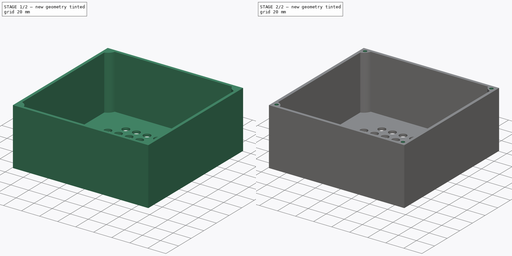
[diagram: build sequence overview — one tinted view per stage of 2, left to right]
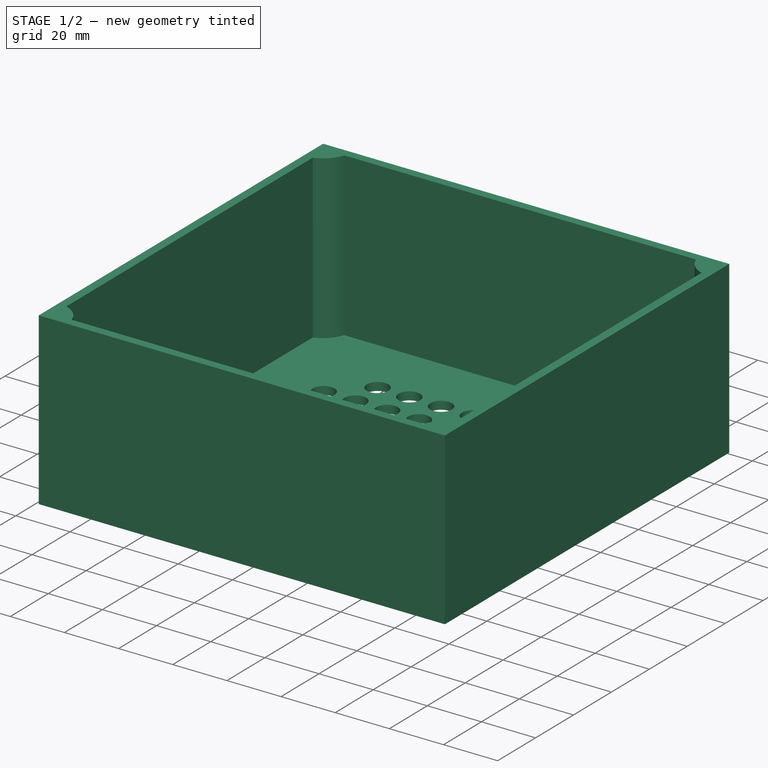
[diagram: stage 1 of 2 — iso view after this stage's code; geometry added in this stage tinted green]
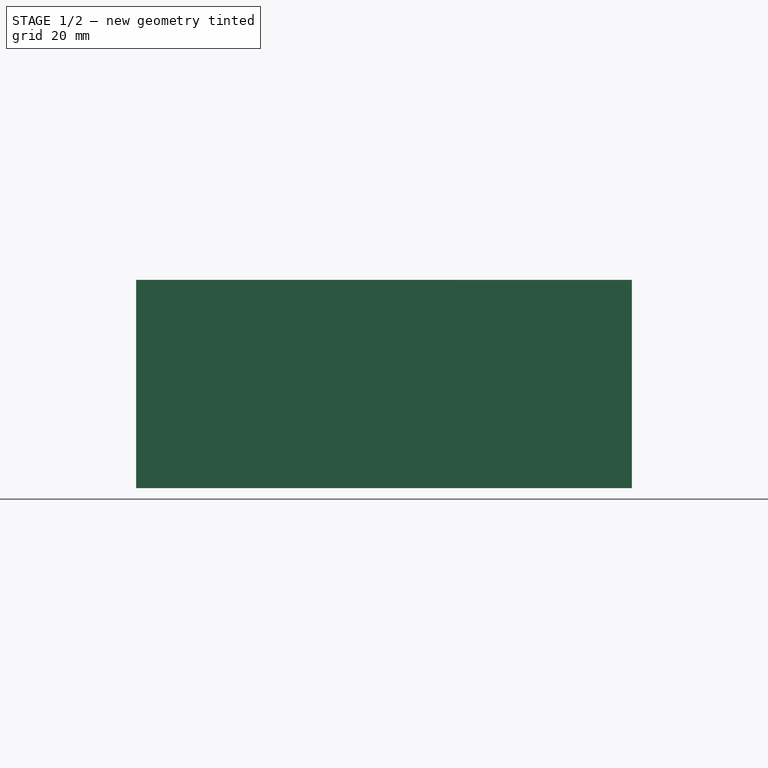
[diagram: stage 1 of 2 — front view after this stage's code; geometry added in this stage tinted green]
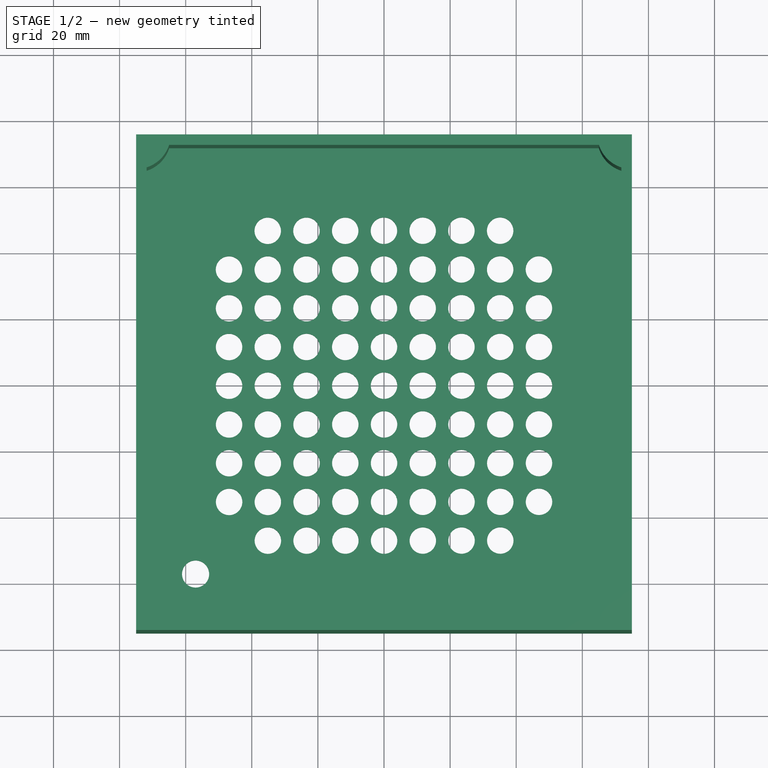
[diagram: stage 1 of 2 — top view after this stage's code; geometry added in this stage tinted green]
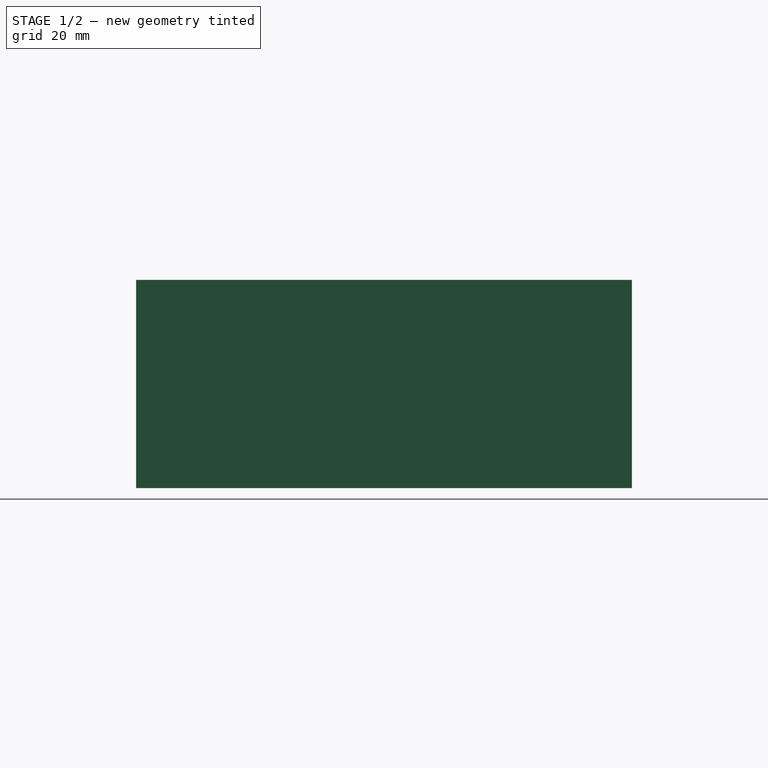
[diagram: stage 1 of 2 — right view after this stage's code; geometry added in this stage tinted green]
FCSTD DOCUMENT  (FreeCAD 0.21R29393 (Git))
Label: SpeakerBack
License: All rights reserved
LicenseURL: http://en.wikipedia.org/wiki/All_rights_reserved
objects: Sketcher::SketchObject×3, PartDesign::Pad×2, PartDesign::Plane×2, PartDesign::Pocket×1, PartDesign::Body×1
note: 12 computed .brp shape members not serialized (recipe doc carries the construction recipe); baked Part::Feature solids carry a one-line shape summary decoded from their .brp

FEATURE [Sketcher::SketchObject] Sketch
  FullyConstrained = false
  MapMode = 5
  Support = -> [XY_Plane]
  sketch-geometry (162):
    g0: LineSegment StartX=-75 StartY=75 StartZ=0 EndX=75 EndY=75 EndZ=0
    g1: LineSegment StartX=75 StartY=75 StartZ=0 EndX=75 EndY=-75 EndZ=0
    g2: LineSegment StartX=75 StartY=-75 StartZ=0 EndX=-75 EndY=-75 EndZ=0
    g3: LineSegment StartX=-75 StartY=-75 StartZ=0 EndX=-75 EndY=75 EndZ=0
    g4: Circle CenterX=-35.1766 CenterY=46.8606 CenterZ=0 NormalX=0 NormalY=0 NormalZ=1 AngleXU=0 Radius=4
    g5: LineSegment StartX=-46.8958 StartY=46.8553 StartZ=0 EndX=-35.1766 EndY=46.8606 EndZ=0
    g6: Circle CenterX=-23.4575 CenterY=46.866 CenterZ=0 NormalX=0 NormalY=0 NormalZ=1 AngleXU=0 Radius=4
    g7: LineSegment StartX=-35.1766 StartY=46.8606 StartZ=0 EndX=-23.4575 EndY=46.866 EndZ=0
    g8: Circle CenterX=-11.7383 CenterY=46.8714 CenterZ=0 NormalX=0 NormalY=0 NormalZ=1 AngleXU=0 Radius=4
    g9: LineSegment StartX=-23.4575 StartY=46.866 StartZ=0 EndX=-11.7383 EndY=46.8714 EndZ=0
    g10: Circle CenterX=-0.0191094 CenterY=46.8767 CenterZ=0 NormalX=0 NormalY=0 NormalZ=1 AngleXU=0 Radius=4
    g11: LineSegment StartX=-11.7383 StartY=46.8714 StartZ=0 EndX=-0.0191094 EndY=46.8767 EndZ=0
    g12: Circle CenterX=11.7001 CenterY=46.8821 CenterZ=0 NormalX=0 NormalY=0 NormalZ=1 AngleXU=0 Radius=4
    g13: LineSegment StartX=-0.0191094 StartY=46.8767 StartZ=0 EndX=11.7001 EndY=46.8821 EndZ=0
    g14: Circle CenterX=23.4192 CenterY=46.8874 CenterZ=0 NormalX=0 NormalY=0 NormalZ=1 AngleXU=0 Radius=4
    g15: LineSegment StartX=11.7001 StartY=46.8821 StartZ=0 EndX=23.4192 EndY=46.8874 EndZ=0
    g16: Circle CenterX=35.1384 CenterY=46.8928 CenterZ=0 NormalX=0 NormalY=0 NormalZ=1 AngleXU=0 Radius=4
    g17: LineSegment StartX=23.4192 StartY=46.8874 StartZ=0 EndX=35.1384 EndY=46.8928 EndZ=0
    g18: LineSegment StartX=35.1384 StartY=46.8928 StartZ=0 EndX=46.8576 EndY=46.8981 EndZ=0
    g19: Circle CenterX=-46.8928 CenterY=35.1361 CenterZ=0 NormalX=0 NormalY=0 NormalZ=1 AngleXU=0 Radius=4
    g20: LineSegment StartX=-46.8981 StartY=46.8553 StartZ=0 EndX=-46.8928 EndY=35.1361 EndZ=0
    g21: Circle CenterX=-35.1736 CenterY=35.1415 CenterZ=0 NormalX=0 NormalY=0 NormalZ=1 AngleXU=0 Radius=4
    g22: LineSegment StartX=-46.8928 StartY=35.1361 StartZ=0 EndX=-35.1736 EndY=35.1415 EndZ=0
    g23: Circle CenterX=-23.4544 CenterY=35.1468 CenterZ=0 NormalX=0 NormalY=0 NormalZ=1 AngleXU=0 Radius=4
    g24: LineSegment StartX=-35.1736 StartY=35.1415 StartZ=0 EndX=-23.4544 EndY=35.1468 EndZ=0
    g25: Circle CenterX=-11.7352 CenterY=35.1522 CenterZ=0 NormalX=0 NormalY=0 NormalZ=1 AngleXU=0 Radius=4
    g26: LineSegment StartX=-23.4544 StartY=35.1468 StartZ=0 EndX=-11.7352 EndY=35.1522 EndZ=0
    g27: Circle CenterX=-0.016068 CenterY=35.1575 CenterZ=0 NormalX=0 NormalY=0 NormalZ=1 AngleXU=0 Radius=4
    g28: LineSegment StartX=-11.7352 StartY=35.1522 StartZ=0 EndX=-0.016068 EndY=35.1575 EndZ=0
    g29: Circle CenterX=11.7031 CenterY=35.1629 CenterZ=0 NormalX=0 NormalY=0 NormalZ=1 AngleXU=0 Radius=4
    g30: LineSegment StartX=-0.016068 StartY=35.1575 StartZ=0 EndX=11.7031 EndY=35.1629 EndZ=0
    g31: Circle CenterX=23.4223 CenterY=35.1682 CenterZ=0 NormalX=0 NormalY=0 NormalZ=1 AngleXU=0 Radius=4
    g32: LineSegment StartX=11.7031 StartY=35.1629 StartZ=0 EndX=23.4223 EndY=35.1682 EndZ=0
    g33: Circle CenterX=35.1415 CenterY=35.1736 CenterZ=0 NormalX=0 NormalY=0 NormalZ=1 AngleXU=0 Radius=4
    g34: LineSegment StartX=23.4223 StartY=35.1682 StartZ=0 EndX=35.1415 EndY=35.1736 EndZ=0
    g35: Circle CenterX=46.8606 CenterY=35.179 CenterZ=0 NormalX=0 NormalY=0 NormalZ=1 AngleXU=0 Radius=4
    g36: LineSegment StartX=35.1415 StartY=35.1736 StartZ=0 EndX=46.8606 EndY=35.179 EndZ=0
    g37: Circle CenterX=-46.8874 CenterY=23.4169 CenterZ=0 NormalX=0 NormalY=0 NormalZ=1 AngleXU=0 Radius=4
    g38: LineSegment StartX=-46.8928 StartY=35.1361 StartZ=0 EndX=-46.8874 EndY=23.4169 EndZ=0
    g39: Circle CenterX=-35.1682 CenterY=23.4223 CenterZ=0 NormalX=0 NormalY=0 NormalZ=1 AngleXU=0 Radius=4
    g40: LineSegment StartX=-46.8874 StartY=23.4169 StartZ=0 EndX=-35.1682 EndY=23.4223 EndZ=0
    g41: Circle CenterX=-23.4491 CenterY=23.4276 CenterZ=0 NormalX=0 NormalY=0 NormalZ=1 AngleXU=0 Radius=4
    g42: LineSegment StartX=-35.1682 StartY=23.4223 StartZ=0 EndX=-23.4491 EndY=23.4276 EndZ=0
    g43: Circle CenterX=-11.7299 CenterY=23.433 CenterZ=0 NormalX=0 NormalY=0 NormalZ=1 AngleXU=0 Radius=4
    g44: LineSegment StartX=-23.4491 StartY=23.4276 StartZ=0 EndX=-11.7299 EndY=23.433 EndZ=0
    g45: Circle CenterX=-0.010712 CenterY=23.4384 CenterZ=0 NormalX=0 NormalY=0 NormalZ=1 AngleXU=0 Radius=4
    g46: LineSegment StartX=-11.7299 StartY=23.433 StartZ=0 EndX=-0.010712 EndY=23.4384 EndZ=0
    g47: Circle CenterX=11.7085 CenterY=23.4437 CenterZ=0 NormalX=0 NormalY=0 NormalZ=1 AngleXU=0 Radius=4
    g48: LineSegment StartX=-0.010712 StartY=23.4384 StartZ=0 EndX=11.7085 EndY=23.4437 EndZ=0
    g49: Circle CenterX=23.4276 CenterY=23.4491 CenterZ=0 NormalX=0 NormalY=0 NormalZ=1 AngleXU=0 Radius=4
    g50: LineSegment StartX=11.7085 StartY=23.4437 StartZ=0 EndX=23.4276 EndY=23.4491 EndZ=0
    g51: Circle CenterX=35.1468 CenterY=23.4544 CenterZ=0 NormalX=0 NormalY=0 NormalZ=1 AngleXU=0 Radius=4
    g52: LineSegment StartX=23.4276 StartY=23.4491 StartZ=0 EndX=35.1468 EndY=23.4544 EndZ=0
    g53: Circle CenterX=46.866 CenterY=23.4598 CenterZ=0 NormalX=0 NormalY=0 NormalZ=1 AngleXU=0 Radius=4
    g54: LineSegment StartX=35.1468 StartY=23.4544 StartZ=0 EndX=46.866 EndY=23.4598 EndZ=0
    g55: Circle CenterX=-46.8821 CenterY=11.6978 CenterZ=0 NormalX=0 NormalY=0 NormalZ=1 AngleXU=0 Radius=4
    g56: LineSegment StartX=-46.8874 StartY=23.4169 StartZ=0 EndX=-46.8821 EndY=11.6978 EndZ=0
    g57: Circle CenterX=-35.1629 CenterY=11.7031 CenterZ=0 NormalX=0 NormalY=0 NormalZ=1 AngleXU=0 Radius=4
    g58: LineSegment StartX=-46.8821 StartY=11.6978 StartZ=0 EndX=-35.1629 EndY=11.7031 EndZ=0
    g59: Circle CenterX=-23.4437 CenterY=11.7085 CenterZ=0 NormalX=0 NormalY=0 NormalZ=1 AngleXU=0 Radius=4
    g60: LineSegment StartX=-35.1629 StartY=11.7031 StartZ=0 EndX=-23.4437 EndY=11.7085 EndZ=0
    g61: Circle CenterX=-11.7245 CenterY=11.7138 CenterZ=0 NormalX=0 NormalY=0 NormalZ=1 AngleXU=0 Radius=4
    g62: LineSegment StartX=-23.4437 StartY=11.7085 StartZ=0 EndX=-11.7245 EndY=11.7138 EndZ=0
    g63: Circle CenterX=-0.005356 CenterY=11.7192 CenterZ=0 NormalX=0 NormalY=0 NormalZ=1 AngleXU=0 Radius=4
    g64: LineSegment StartX=-11.7245 StartY=11.7138 StartZ=0 EndX=-0.005356 EndY=11.7192 EndZ=0
    g65: Circle CenterX=11.7138 CenterY=11.7245 CenterZ=0 NormalX=0 NormalY=0 NormalZ=1 AngleXU=0 Radius=4
    g66: LineSegment StartX=-0.005356 StartY=11.7192 StartZ=0 EndX=11.7138 EndY=11.7245 EndZ=0
    g67: Circle CenterX=23.433 CenterY=11.7299 CenterZ=0 NormalX=0 NormalY=0 NormalZ=1 AngleXU=0 Radius=4
    g68: LineSegment StartX=11.7138 StartY=11.7245 StartZ=0 EndX=23.433 EndY=11.7299 EndZ=0
    g69: Circle CenterX=35.1522 CenterY=11.7352 CenterZ=0 NormalX=0 NormalY=0 NormalZ=1 AngleXU=0 Radius=4
    g70: LineSegment StartX=23.433 StartY=11.7299 StartZ=0 EndX=35.1522 EndY=11.7352 EndZ=0
    g71: Circle CenterX=46.8714 CenterY=11.7406 CenterZ=0 NormalX=0 NormalY=0 NormalZ=1 AngleXU=0 Radius=4
    g72: LineSegment StartX=35.1522 StartY=11.7352 StartZ=0 EndX=46.8714 EndY=11.7406 EndZ=0
    g73: Circle CenterX=-46.8767 CenterY=-0.021424 CenterZ=0 NormalX=0 NormalY=0 NormalZ=1 AngleXU=0 Radius=4
    g74: LineSegment StartX=-46.8821 StartY=11.6978 StartZ=0 EndX=-46.8767 EndY=-0.021424 EndZ=0
    g75: Circle CenterX=-35.1575 CenterY=-0.016068 CenterZ=0 NormalX=0 NormalY=0 NormalZ=1 AngleXU=0 Radius=4
    g76: LineSegment StartX=-46.8767 StartY=-0.021424 StartZ=0 EndX=-35.1575 EndY=-0.016068 EndZ=0
    g77: Circle CenterX=-23.4384 CenterY=-0.010712 CenterZ=0 NormalX=0 NormalY=0 NormalZ=1 AngleXU=0 Radius=4
    g78: LineSegment StartX=-35.1575 StartY=-0.016068 StartZ=0 EndX=-23.4384 EndY=-0.010712 EndZ=0
    g79: Circle CenterX=-11.7192 CenterY=-0.005356 CenterZ=0 NormalX=0 NormalY=0 NormalZ=1 AngleXU=0 Radius=4
    g80: LineSegment StartX=-23.4384 StartY=-0.010712 StartZ=0 EndX=-11.7192 EndY=-0.005356 EndZ=0
    g81: Circle CenterX=0 CenterY=0 CenterZ=0 NormalX=0 NormalY=0 NormalZ=1 AngleXU=0 Radius=4
    g82: LineSegment StartX=-11.7192 StartY=-0.005356 StartZ=0 EndX=0 EndY=0 EndZ=0
    g83: Circle CenterX=11.7192 CenterY=0.005356 CenterZ=0 NormalX=0 NormalY=0 NormalZ=1 AngleXU=0 Radius=4
    g84: LineSegment StartX=0 StartY=0 StartZ=0 EndX=11.7192 EndY=0.005356 EndZ=0
    g85: Circle CenterX=23.4384 CenterY=0.010712 CenterZ=0 NormalX=0 NormalY=0 NormalZ=1 AngleXU=0 Radius=4
    g86: LineSegment StartX=11.7192 StartY=0.005356 StartZ=0 EndX=23.4384 EndY=0.010712 EndZ=0
    g87: Circle CenterX=35.1575 CenterY=0.016068 CenterZ=0 NormalX=0 NormalY=0 NormalZ=1 AngleXU=0 Radius=4
    g88: LineSegment StartX=23.4384 StartY=0.010712 StartZ=0 EndX=35.1575 EndY=0.016068 EndZ=0
    g89: Circle CenterX=46.8767 CenterY=0.021424 CenterZ=0 NormalX=0 NormalY=0 NormalZ=1 AngleXU=0 Radius=4
    g90: LineSegment StartX=35.1575 StartY=0.016068 StartZ=0 EndX=46.8767 EndY=0.021424 EndZ=0
    g91: Circle CenterX=-46.8714 CenterY=-11.7406 CenterZ=0 NormalX=0 NormalY=0 NormalZ=1 AngleXU=0 Radius=4
    g92: LineSegment StartX=-46.8767 StartY=-0.021424 StartZ=0 EndX=-46.8714 EndY=-11.7406 EndZ=0
    g93: Circle CenterX=-35.1522 CenterY=-11.7352 CenterZ=0 NormalX=0 NormalY=0 NormalZ=1 AngleXU=0 Radius=4
    g94: LineSegment StartX=-46.8714 StartY=-11.7406 StartZ=0 EndX=-35.1522 EndY=-11.7352 EndZ=0
    g95: Circle CenterX=-23.433 CenterY=-11.7299 CenterZ=0 NormalX=0 NormalY=0 NormalZ=1 AngleXU=0 Radius=4
    g96: LineSegment StartX=-35.1522 StartY=-11.7352 StartZ=0 EndX=-23.433 EndY=-11.7299 EndZ=0
    g97: Circle CenterX=-11.7138 CenterY=-11.7245 CenterZ=0 NormalX=0 NormalY=0 NormalZ=1 AngleXU=0 Radius=4
    g98: LineSegment StartX=-23.433 StartY=-11.7299 StartZ=0 EndX=-11.7138 EndY=-11.7245 EndZ=0
    g99: Circle CenterX=0.005356 CenterY=-11.7192 CenterZ=0 NormalX=0 NormalY=0 NormalZ=1 AngleXU=0 Radius=4
    g100: LineSegment StartX=-11.7138 StartY=-11.7245 StartZ=0 EndX=0.005356 EndY=-11.7192 EndZ=0
    g101: Circle CenterX=11.7245 CenterY=-11.7138 CenterZ=0 NormalX=0 NormalY=0 NormalZ=1 AngleXU=0 Radius=4
    g102: LineSegment StartX=0.005356 StartY=-11.7192 StartZ=0 EndX=11.7245 EndY=-11.7138 EndZ=0
    g103: Circle CenterX=23.4437 CenterY=-11.7085 CenterZ=0 NormalX=0 NormalY=0 NormalZ=1 AngleXU=0 Radius=4
    g104: LineSegment StartX=11.7245 StartY=-11.7138 StartZ=0 EndX=23.4437 EndY=-11.7085 EndZ=0
    g105: Circle CenterX=35.1629 CenterY=-11.7031 CenterZ=0 NormalX=0 NormalY=0 NormalZ=1 AngleXU=0 Radius=4
    g106: LineSegment StartX=23.4437 StartY=-11.7085 StartZ=0 EndX=35.1629 EndY=-11.7031 EndZ=0
    g107: Circle CenterX=46.8821 CenterY=-11.6978 CenterZ=0 NormalX=0 NormalY=0 NormalZ=1 AngleXU=0 Radius=4
    g108: LineSegment StartX=35.1629 StartY=-11.7031 StartZ=0 EndX=46.8821 EndY=-11.6978 EndZ=0
    g109: Circle CenterX=-46.866 CenterY=-23.4598 CenterZ=0 NormalX=0 NormalY=0 NormalZ=1 AngleXU=0 Radius=4
    g110: LineSegment StartX=-46.8714 StartY=-11.7406 StartZ=0 EndX=-46.866 EndY=-23.4598 EndZ=0
    g111: Circle CenterX=-35.1468 CenterY=-23.4544 CenterZ=0 NormalX=0 NormalY=0 NormalZ=1 AngleXU=0 Radius=4
    g112: LineSegment StartX=-46.866 StartY=-23.4598 StartZ=0 EndX=-35.1468 EndY=-23.4544 EndZ=0
    g113: Circle CenterX=-23.4276 CenterY=-23.4491 CenterZ=0 NormalX=0 NormalY=0 NormalZ=1 AngleXU=0 Radius=4
    g114: LineSegment StartX=-35.1468 StartY=-23.4544 StartZ=0 EndX=-23.4276 EndY=-23.4491 EndZ=0
    g115: Circle CenterX=-11.7085 CenterY=-23.4437 CenterZ=0 NormalX=0 NormalY=0 NormalZ=1 AngleXU=0 Radius=4
    g116: LineSegment StartX=-23.4276 StartY=-23.4491 StartZ=0 EndX=-11.7085 EndY=-23.4437 EndZ=0
    g117: Circle CenterX=0.010712 CenterY=-23.4384 CenterZ=0 NormalX=0 NormalY=0 NormalZ=1 AngleXU=0 Radius=4
    g118: LineSegment StartX=-11.7085 StartY=-23.4437 StartZ=0 EndX=0.010712 EndY=-23.4384 EndZ=0
    g119: Circle CenterX=11.7299 CenterY=-23.433 CenterZ=0 NormalX=0 NormalY=0 NormalZ=1 AngleXU=0 Radius=4
    g120: LineSegment StartX=0.010712 StartY=-23.4384 StartZ=0 EndX=11.7299 EndY=-23.433 EndZ=0
    g121: Circle CenterX=23.4491 CenterY=-23.4276 CenterZ=0 NormalX=0 NormalY=0 NormalZ=1 AngleXU=0 Radius=4
    g122: LineSegment StartX=11.7299 StartY=-23.433 StartZ=0 EndX=23.4491 EndY=-23.4276 EndZ=0
    g123: Circle CenterX=35.1682 CenterY=-23.4223 CenterZ=0 NormalX=0 NormalY=0 NormalZ=1 AngleXU=0 Radius=4
    g124: LineSegment StartX=23.4491 StartY=-23.4276 StartZ=0 EndX=35.1682 EndY=-23.4223 EndZ=0
    g125: Circle CenterX=46.8874 CenterY=-23.4169 CenterZ=0 NormalX=0 NormalY=0 NormalZ=1 AngleXU=0 Radius=4
    g126: LineSegment StartX=35.1682 StartY=-23.4223 StartZ=0 EndX=46.8874 EndY=-23.4169 EndZ=0
    g127: Circle CenterX=-46.8606 CenterY=-35.179 CenterZ=0 NormalX=0 NormalY=0 NormalZ=1 AngleXU=0 Radius=4
    g128: LineSegment StartX=-46.866 StartY=-23.4598 StartZ=0 EndX=-46.8606 EndY=-35.179 EndZ=0
    g129: Circle CenterX=-35.1415 CenterY=-35.1736 CenterZ=0 NormalX=0 NormalY=0 NormalZ=1 AngleXU=0 Radius=4
    g130: LineSegment StartX=-46.8606 StartY=-35.179 StartZ=0 EndX=-35.1415 EndY=-35.1736 EndZ=0
    g131: Circle CenterX=-23.4223 CenterY=-35.1682 CenterZ=0 NormalX=0 NormalY=0 NormalZ=1 AngleXU=0 Radius=4
    g132: LineSegment StartX=-35.1415 StartY=-35.1736 StartZ=0 EndX=-23.4223 EndY=-35.1682 EndZ=0
    g133: Circle CenterX=-11.7031 CenterY=-35.1629 CenterZ=0 NormalX=0 NormalY=0 NormalZ=1 AngleXU=0 Radius=4
    g134: LineSegment StartX=-23.4223 StartY=-35.1682 StartZ=0 EndX=-11.7031 EndY=-35.1629 EndZ=0
    g135: Circle CenterX=0.016068 CenterY=-35.1575 CenterZ=0 NormalX=0 NormalY=0 NormalZ=1 AngleXU=0 Radius=4
    g136: LineSegment StartX=-11.7031 StartY=-35.1629 StartZ=0 EndX=0.016068 EndY=-35.1575 EndZ=0
    g137: Circle CenterX=11.7352 CenterY=-35.1522 CenterZ=0 NormalX=0 NormalY=0 NormalZ=1 AngleXU=0 Radius=4
    g138: LineSegment StartX=0.016068 StartY=-35.1575 StartZ=0 EndX=11.7352 EndY=-35.1522 EndZ=0
    g139: Circle CenterX=23.4544 CenterY=-35.1468 CenterZ=0 NormalX=0 NormalY=0 NormalZ=1 AngleXU=0 Radius=4
    g140: LineSegment StartX=11.7352 StartY=-35.1522 StartZ=0 EndX=23.4544 EndY=-35.1468 EndZ=0
    g141: Circle CenterX=35.1736 CenterY=-35.1415 CenterZ=0 NormalX=0 NormalY=0 NormalZ=1 AngleXU=0 Radius=4
    g142: LineSegment StartX=23.4544 StartY=-35.1468 StartZ=0 EndX=35.1736 EndY=-35.1415 EndZ=0
    g143: Circle CenterX=46.8928 CenterY=-35.1361 CenterZ=0 NormalX=0 NormalY=0 NormalZ=1 AngleXU=0 Radius=4
    g144: LineSegment StartX=35.1736 StartY=-35.1415 StartZ=0 EndX=46.8928 EndY=-35.1361 EndZ=0
    g145: LineSegment StartX=-46.8606 StartY=-35.179 StartZ=0 EndX=-46.8553 EndY=-46.8981 EndZ=0
    g146: Circle CenterX=-35.136 CenterY=-46.8928 CenterZ=0 NormalX=0 NormalY=0 NormalZ=1 AngleXU=0 Radius=4
    g147: LineSegment StartX=-46.8552 StartY=-46.8981 StartZ=0 EndX=-35.136 EndY=-46.8928 EndZ=0
    g148: Circle CenterX=-23.4169 CenterY=-46.8874 CenterZ=0 NormalX=0 NormalY=0 NormalZ=1 AngleXU=0 Radius=4
    g149: LineSegment StartX=-35.136 StartY=-46.8928 StartZ=0 EndX=-23.4169 EndY=-46.8874 EndZ=0
    g150: Circle CenterX=-11.6977 CenterY=-46.8821 CenterZ=0 NormalX=0 NormalY=0 NormalZ=1 AngleXU=0 Radius=4
    g151: LineSegment StartX=-23.4169 StartY=-46.8874 StartZ=0 EndX=-11.6977 EndY=-46.8821 EndZ=0
    g152: Circle CenterX=0.0214823 CenterY=-46.8767 CenterZ=0 NormalX=0 NormalY=0 NormalZ=1 AngleXU=0 Radius=4
    g153: LineSegment StartX=-11.6977 StartY=-46.8821 StartZ=0 EndX=0.0214823 EndY=-46.8767 EndZ=0
    g154: Circle CenterX=11.7407 CenterY=-46.8714 CenterZ=0 NormalX=0 NormalY=0 NormalZ=1 AngleXU=0 Radius=4
    g155: LineSegment StartX=0.0214823 StartY=-46.8767 StartZ=0 EndX=11.7407 EndY=-46.8714 EndZ=0
    g156: Circle CenterX=23.4598 CenterY=-46.866 CenterZ=0 NormalX=0 NormalY=0 NormalZ=1 AngleXU=0 Radius=4
    g157: LineSegment StartX=11.7407 StartY=-46.8714 StartZ=0 EndX=23.4598 EndY=-46.866 EndZ=0
    g158: Circle CenterX=35.179 CenterY=-46.8606 CenterZ=0 NormalX=0 NormalY=0 NormalZ=1 AngleXU=0 Radius=4
    g159: LineSegment StartX=23.4598 StartY=-46.866 StartZ=0 EndX=35.179 EndY=-46.8606 EndZ=0
    g160: LineSegment StartX=35.179 StartY=-46.8606 StartZ=0 EndX=46.8982 EndY=-46.8553 EndZ=0
    g161: Circle CenterX=-57 CenterY=-57 CenterZ=0 NormalX=0 NormalY=0 NormalZ=1 AngleXU=0 Radius=4.1
  constraints (406):
    c: Coincident(g0,g1)
    c: Coincident(g1,g2)
    c: Coincident(g2,g3)
    c: Coincident(g3,g0)
    c: Horizontal(g0)
    c: Horizontal(g2)
    c: Vertical(g1)
    c: Vertical(g3)
    c: Symmetric(g0,g1,g-1)
    c: Equal(g3,g0)
    c: DistanceX(g0,g0) = 150
    c: Diameter(g4) = 8
    c: Coincident(g4,g5)
    c: Distance(g5) = 11.7192
    c: Angle(g5) = 0.000457029
    c: Diameter(g6) = 8
    c: Coincident(g4,g7)
    c: Coincident(g6,g7)
    c: Equal(g5,g7)
    c: Parallel(g7,g5)
    c: Diameter(g8) = 8
    c: Coincident(g6,g9)
    c: Coincident(g8,g9)
    c: Equal(g5,g9)
    c: Parallel(g9,g5)
    c: Diameter(g10) = 8
    c: Coincident(g8,g11)
    c: Coincident(g10,g11)
    c: Equal(g5,g11)
    c: Parallel(g11,g5)
    c: Diameter(g12) = 8
    c: Coincident(g10,g13)
    c: Coincident(g12,g13)
    c: Equal(g5,g13)
    c: Parallel(g13,g5)
    c: Diameter(g14) = 8
    c: Coincident(g12,g15)
    c: Coincident(g14,g15)
    c: Equal(g5,g15)
    c: Parallel(g15,g5)
    c: Diameter(g16) = 8
    c: Coincident(g14,g17)
    c: Coincident(g16,g17)
    c: Equal(g5,g17)
    c: Parallel(g17,g5)
    c: Coincident(g16,g18)
    c: Equal(g5,g18)
    c: Parallel(g18,g5)
    c: Diameter(g19) = 8
    c: Coincident(g19,g20)
    c: Equal(g20,g5)
    c: Perpendicular(g20,g5)
    c: Diameter(g21) = 8
    c: Coincident(g19,g22)
    c: Coincident(g21,g22)
    c: Equal(g5,g22)
    c: Parallel(g22,g5)
    c: Diameter(g23) = 8
    c: Coincident(g21,g24)
    c: Coincident(g23,g24)
    c: Equal(g5,g24)
    c: Parallel(g24,g5)
    c: Diameter(g25) = 8
    c: Coincident(g23,g26)
    c: Coincident(g25,g26)
    c: Equal(g5,g26)
    c: Parallel(g26,g5)
    c: Diameter(g27) = 8
    c: Coincident(g25,g28)
    c: Coincident(g27,g28)
    c: Equal(g5,g28)
    c: Parallel(g28,g5)
    c: Diameter(g29) = 8
    c: Coincident(g27,g30)
    c: Coincident(g29,g30)
    c: Equal(g5,g30)
    c: Parallel(g30,g5)
    c: Diameter(g31) = 8
    c: Coincident(g29,g32)
    c: Coincident(g31,g32)
    c: Equal(g5,g32)
    c: Parallel(g32,g5)
    c: Diameter(g33) = 8
    c: Coincident(g31,g34)
    c: Coincident(g33,g34)
    c: Equal(g5,g34)
    c: Parallel(g34,g5)
    c: Diameter(g35) = 8
    c: Coincident(g33,g36)
    c: Coincident(g35,g36)
    c: Equal(g5,g36)
    c: Parallel(g36,g5)
    c: Diameter(g37) = 8
    c: Coincident(g19,g38)
    c: Coincident(g37,g38)
    c: Equal(g20,g38)
    c: Perpendicular(g38,g5)
    c: Diameter(g39) = 8
    c: Coincident(g37,g40)
    c: Coincident(g39,g40)
    c: Equal(g5,g40)
    c: Parallel(g40,g5)
    c: Diameter(g41) = 8
    c: Coincident(g39,g42)
    c: Coincident(g41,g42)
    c: Equal(g5,g42)
    c: Parallel(g42,g5)
    c: Diameter(g43) = 8
    c: Coincident(g41,g44)
    c: Coincident(g43,g44)
    c: Equal(g5,g44)
    c: Parallel(g44,g5)
    c: Diameter(g45) = 8
    c: Coincident(g43,g46)
    c: Coincident(g45,g46)
    c: Equal(g5,g46)
    c: Parallel(g46,g5)
    c: Diameter(g47) = 8
    c: Coincident(g45,g48)
    c: Coincident(g47,g48)
    c: Equal(g5,g48)
    c: Parallel(g48,g5)
    c: Diameter(g49) = 8
    c: Coincident(g47,g50)
    c: Coincident(g49,g50)
    c: Equal(g5,g50)
    c: Parallel(g50,g5)
    c: Diameter(g51) = 8
    c: Coincident(g49,g52)
    c: Coincident(g51,g52)
    c: Equal(g5,g52)
    c: Parallel(g52,g5)
    c: Diameter(g53) = 8
    c: Coincident(g51,g54)
    c: Coincident(g53,g54)
    c: Equal(g5,g54)
    c: Parallel(g54,g5)
    c: Diameter(g55) = 8
    c: Coincident(g37,g56)
    c: Coincident(g55,g56)
    c: Equal(g20,g56)
    c: Perpendicular(g56,g5)
    c: Diameter(g57) = 8
    c: Coincident(g55,g58)
    c: Coincident(g57,g58)
    c: Equal(g5,g58)
    c: Parallel(g58,g5)
    c: Diameter(g59) = 8
    c: Coincident(g57,g60)
    c: Coincident(g59,g60)
    c: Equal(g5,g60)
    c: Parallel(g60,g5)
    c: Diameter(g61) = 8
    c: Coincident(g59,g62)
    c: Coincident(g61,g62)
    c: Equal(g5,g62)
    c: Parallel(g62,g5)
    c: Diameter(g63) = 8
    c: Coincident(g61,g64)
    c: Coincident(g63,g64)
    c: Equal(g5,g64)
    c: Parallel(g64,g5)
    c: Diameter(g65) = 8
    c: Coincident(g63,g66)
    c: Coincident(g65,g66)
    c: Equal(g5,g66)
    c: Parallel(g66,g5)
    c: Diameter(g67) = 8
    c: Coincident(g65,g68)
    c: Coincident(g67,g68)
    c: Equal(g5,g68)
    c: Parallel(g68,g5)
    c: Diameter(g69) = 8
    c: Coincident(g67,g70)
    c: Coincident(g69,g70)
    c: Equal(g5,g70)
    c: Parallel(g70,g5)
    c: Diameter(g71) = 8
    c: Coincident(g69,g72)
    c: Coincident(g71,g72)
    c: Equal(g5,g72)
    c: Parallel(g72,g5)
    c: Diameter(g73) = 8
    c: Coincident(g55,g74)
    c: Coincident(g73,g74)
    c: Equal(g20,g74)
    c: Perpendicular(g74,g5)
    c: Diameter(g75) = 8
    c: Coincident(g73,g76)
    c: Coincident(g75,g76)
    c: Equal(g5,g76)
    c: Parallel(g76,g5)
    c: Diameter(g77) = 8
    c: Coincident(g75,g78)
    c: Coincident(g77,g78)
    c: Equal(g5,g78)
    c: Parallel(g78,g5)
    c: Diameter(g79) = 8
    c: Coincident(g77,g80)
    c: Coincident(g79,g80)
    c: Equal(g5,g80)
    c: Parallel(g80,g5)
    c: Diameter(g81) = 8
    c: Coincident(g79,g82)
    c: Coincident(g81,g82)
    c: Equal(g5,g82)
    c: Parallel(g82,g5)
    c: Diameter(g83) = 8
    c: Coincident(g81,g84)
    c: Coincident(g83,g84)
    c: Equal(g5,g84)
    c: Parallel(g84,g5)
    c: Diameter(g85) = 8
    c: Coincident(g83,g86)
    c: Coincident(g85,g86)
    c: Equal(g5,g86)
    c: Parallel(g86,g5)
    c: Diameter(g87) = 8
    c: Coincident(g85,g88)
    c: Coincident(g87,g88)
    c: Equal(g5,g88)
    c: Parallel(g88,g5)
    c: Diameter(g89) = 8
    c: Coincident(g87,g90)
    c: Coincident(g89,g90)
    c: Equal(g5,g90)
    c: Parallel(g90,g5)
    c: Diameter(g91) = 8
    c: Coincident(g73,g92)
    c: Coincident(g91,g92)
    c: Equal(g20,g92)
    c: Perpendicular(g92,g5)
    c: Diameter(g93) = 8
    c: Coincident(g91,g94)
    c: Coincident(g93,g94)
    c: Equal(g5,g94)
    c: Parallel(g94,g5)
    c: Diameter(g95) = 8
    c: Coincident(g93,g96)
    c: Coincident(g95,g96)
    c: Equal(g5,g96)
    c: Parallel(g96,g5)
    c: Diameter(g97) = 8
    c: Coincident(g95,g98)
    c: Coincident(g97,g98)
    c: Equal(g5,g98)
    c: Parallel(g98,g5)
    c: Diameter(g99) = 8
    c: Coincident(g97,g100)
    c: Coincident(g99,g100)
    c: Equal(g5,g100)
    c: Parallel(g100,g5)
    c: Diameter(g101) = 8
    c: Coincident(g99,g102)
    c: Coincident(g101,g102)
    c: Equal(g5,g102)
    c: Parallel(g102,g5)
    c: Diameter(g103) = 8
    c: Coincident(g101,g104)
    c: Coincident(g103,g104)
    c: Equal(g5,g104)
    c: Parallel(g104,g5)
    c: Diameter(g105) = 8
    c: Coincident(g103,g106)
    c: Coincident(g105,g106)
    c: Equal(g5,g106)
    c: Parallel(g106,g5)
    c: Diameter(g107) = 8
    c: Coincident(g105,g108)
    c: Coincident(g107,g108)
    c: Equal(g5,g108)
    c: Parallel(g108,g5)
    c: Diameter(g109) = 8
    c: Coincident(g91,g110)
    c: Coincident(g109,g110)
    c: Equal(g20,g110)
    c: Perpendicular(g110,g5)
    c: Diameter(g111) = 8
    c: Coincident(g109,g112)
    c: Coincident(g111,g112)
    c: Equal(g5,g112)
    c: Parallel(g112,g5)
    c: Diameter(g113) = 8
    c: Coincident(g111,g114)
    c: Coincident(g113,g114)
    c: Equal(g5,g114)
    c: Parallel(g114,g5)
    c: Diameter(g115) = 8
    c: Coincident(g113,g116)
    c: Coincident(g115,g116)
    c: Equal(g5,g116)
    c: Parallel(g116,g5)
    c: Diameter(g117) = 8
    c: Coincident(g115,g118)
    c: Coincident(g117,g118)
    c: Equal(g5,g118)
    c: Parallel(g118,g5)
    c: Diameter(g119) = 8
    c: Coincident(g117,g120)
    c: Coincident(g119,g120)
    c: Equal(g5,g120)
    c: Parallel(g120,g5)
    c: Diameter(g121) = 8
    c: Coincident(g119,g122)
    c: Coincident(g121,g122)
    c: Equal(g5,g122)
    c: Parallel(g122,g5)
    c: Diameter(g123) = 8
    c: Coincident(g121,g124)
    c: Coincident(g123,g124)
    c: Equal(g5,g124)
    c: Parallel(g124,g5)
    c: Diameter(g125) = 8
    c: Coincident(g123,g126)
    c: Coincident(g125,g126)
    c: Equal(g5,g126)
    c: Parallel(g126,g5)
    c: Diameter(g127) = 8
    c: Coincident(g109,g128)
    c: Coincident(g127,g128)
    c: Equal(g20,g128)
    c: Perpendicular(g128,g5)
    c: Diameter(g129) = 8
    c: Coincident(g127,g130)
    c: Coincident(g129,g130)
    c: Equal(g5,g130)
    c: Parallel(g130,g5)
    c: Diameter(g131) = 8
    c: Coincident(g129,g132)
    c: Coincident(g131,g132)
    c: Equal(g5,g132)
    c: Parallel(g132,g5)
    c: Diameter(g133) = 8
    c: Coincident(g131,g134)
    c: Coincident(g133,g134)
    c: Equal(g5,g134)
    c: Parallel(g134,g5)
    c: Diameter(g135) = 8
    c: Coincident(g133,g136)
    c: Coincident(g135,g136)
    c: Equal(g5,g136)
    c: Parallel(g136,g5)
    c: Diameter(g137) = 8
    c: Coincident(g135,g138)
    c: Coincident(g137,g138)
    c: Equal(g5,g138)
    c: Parallel(g138,g5)
    c: Diameter(g139) = 8
    c: Coincident(g137,g140)
    c: Coincident(g139,g140)
    c: Equal(g5,g140)
    c: Parallel(g140,g5)
    c: Diameter(g141) = 8
    c: Coincident(g139,g142)
    c: Coincident(g141,g142)
    c: Equal(g5,g142)
    c: Parallel(g142,g5)
    c: Diameter(g143) = 8
    c: Coincident(g141,g144)
    c: Coincident(g143,g144)
    c: Equal(g5,g144)
    c: Parallel(g144,g5)
    c: Coincident(g127,g145)
    c: Equal(g20,g145)
    c: Perpendicular(g145,g5)
    c: Diameter(g146) = 8
    c: Coincident(g146,g147)
    c: Equal(g5,g147)
    c: Parallel(g147,g5)
    c: Diameter(g148) = 8
    c: Coincident(g146,g149)
    c: Coincident(g148,g149)
    c: Equal(g5,g149)
    c: Parallel(g149,g5)
    c: Diameter(g150) = 8
    c: Coincident(g148,g151)
    c: Coincident(g150,g151)
    c: Equal(g5,g151)
    c: Parallel(g151,g5)
    c: Diameter(g152) = 8
    c: Coincident(g150,g153)
    c: Coincident(g152,g153)
    c: Equal(g5,g153)
    c: Parallel(g153,g5)
    c: Diameter(g154) = 8
    c: Coincident(g152,g155)
    c: Coincident(g154,g155)
    c: Equal(g5,g155)
    c: Parallel(g155,g5)
    c: Diameter(g156) = 8
    c: Coincident(g154,g157)
    c: Coincident(g156,g157)
    c: Equal(g5,g157)
    c: Parallel(g157,g5)
    c: Diameter(g158) = 8
    c: Coincident(g156,g159)
    c: Coincident(g158,g159)
    c: Equal(g5,g159)
    c: Parallel(g159,g5)
    c: Coincident(g158,g160)
    c: Equal(g5,g160)
    c: Parallel(g160,g5)
    c: Coincident(g81,g-1)
    c: Diameter(g161) = 8.2
    c: DistanceX(g2,g161) = 18
    c: DistanceY(g2,g161) = 18
FEATURE [PartDesign::Pad] Pad
  Direction = (0,0,1)
  Length = 3
  Length2 = 10
  Profile = -> Sketch
  ReferenceAxis = -> Sketch [N_Axis]
  Type = 0
FEATURE [PartDesign::Plane] DatumPlane
  AttachmentOffset = pos=(0,0,3) rot=(0,0,1;0rad)
  Length = 60
  MapMode = 5
  Placement = pos=(0,0,3) rot=(0,0,1;0rad)
  ResizeMode = 0
  Support = -> [XY_Plane]
  Width = 60
FEATURE [Sketcher::SketchObject] Sketch001
  FullyConstrained = false
  MapMode = 5
  Placement = pos=(0,0,3) rot=(0,0,1;0rad)
  Support = -> [DatumPlane]
  sketch-geometry (12):
    g0: LineSegment StartX=-75 StartY=75 StartZ=0 EndX=75 EndY=75 EndZ=0
    g1: LineSegment StartX=75 StartY=75 StartZ=0 EndX=75 EndY=-75 EndZ=0
    g2: LineSegment StartX=75 StartY=-75 StartZ=0 EndX=-75 EndY=-75 EndZ=0
    g3: LineSegment StartX=-75 StartY=-75 StartZ=0 EndX=-75 EndY=75 EndZ=0
    g4: LineSegment StartX=-65 StartY=71.8255 StartZ=0 EndX=65 EndY=71.8255 EndZ=0
    g5: LineSegment StartX=71.8255 StartY=65 StartZ=0 EndX=71.8255 EndY=-65 EndZ=0
    g6: LineSegment StartX=65 StartY=-71.8255 StartZ=0 EndX=-65 EndY=-71.8255 EndZ=0
    g7: LineSegment StartX=-71.8255 StartY=-65 StartZ=0 EndX=-71.8255 EndY=65 EndZ=0
    g8: ArcOfCircle CenterX=-75 CenterY=-75 CenterZ=0 NormalX=0 NormalY=0 NormalZ=1 AngleXU=0 Radius=10.4918 StartAngle=0.30739 EndAngle=1.26341
    g9: ArcOfCircle CenterX=75 CenterY=-75 CenterZ=0 NormalX=0 NormalY=0 NormalZ=1 AngleXU=0 Radius=10.4918 StartAngle=1.87819 EndAngle=2.8342
    g10: ArcOfCircle CenterX=-75 CenterY=75 CenterZ=0 NormalX=0 NormalY=0 NormalZ=1 AngleXU=0 Radius=10.4918 StartAngle=5.01978 EndAngle=5.9758
    g11: ArcOfCircle CenterX=75 CenterY=75 CenterZ=0 NormalX=0 NormalY=0 NormalZ=1 AngleXU=0 Radius=10.4918 StartAngle=3.44898 EndAngle=4.405
  constraints (34):
    c: Coincident(g0,g1)
    c: Coincident(g1,g2)
    c: Coincident(g2,g3)
    c: Coincident(g3,g0)
    c: Horizontal(g0)
    c: Horizontal(g2)
    c: Vertical(g1)
    c: Vertical(g3)
    c: DistanceX(g0,g0) = 150
    c: Equal(g0,g3)
    c: Symmetric(g0,g1,g-1)
    c: Horizontal(g4)
    c: Horizontal(g6)
    c: Vertical(g5)
    c: Vertical(g7)
    c: DistanceX(g2,g6) = 10
    c: DistanceY(g2,g7) = 10
    c: DistanceY(g1,g5) = 10
    c: DistanceX(g6,g1) = 10
    c: Coincident(g8,g2)
    c: Coincident(g8,g6)
    c: Coincident(g8,g7)
    c: Coincident(g9,g1)
    c: Coincident(g9,g6)
    c: Coincident(g9,g5)
    c: Coincident(g10,g0)
    c: Coincident(g11,g0)
    c: Coincident(g4,g11)
    c: Coincident(g5,g11)
    c: Coincident(g4,g10)
    c: Coincident(g7,g10)
    c: DistanceX(g4,g0) = 10
    c: DistanceY(g5,g0) = 10
    c: DistanceX(g0,g4) = 10
FEATURE [PartDesign::Pad] Pad001
  BaseFeature = -> Pad
  Direction = (0,0,1)
  Length = 60
  Length2 = 10
  Profile = -> Sketch001
  ReferenceAxis = -> Sketch001 [N_Axis]
  Type = 0
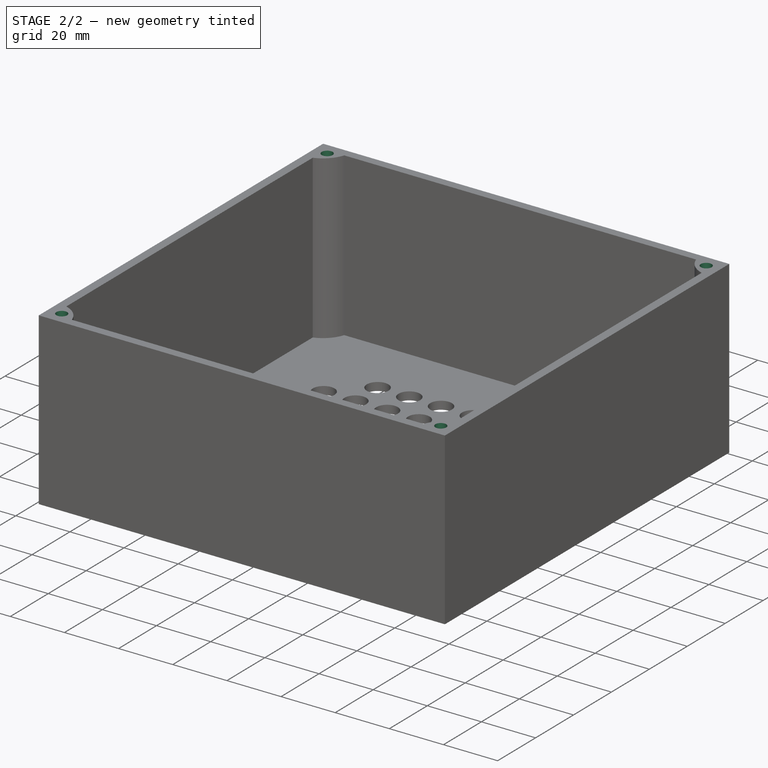
[diagram: stage 2 of 2 — iso view after this stage's code; geometry added in this stage tinted green]
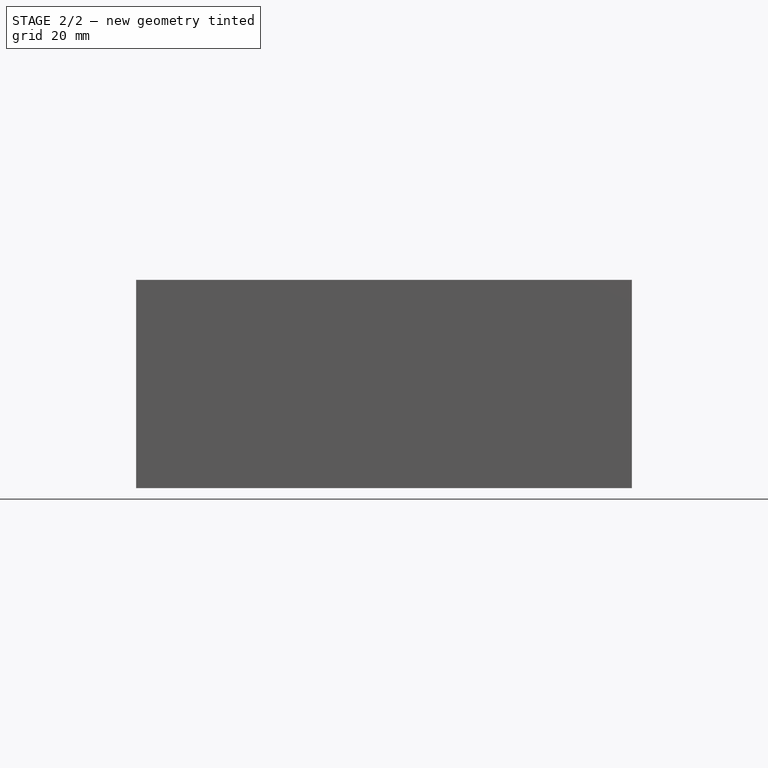
[diagram: stage 2 of 2 — front view after this stage's code; geometry added in this stage tinted green]
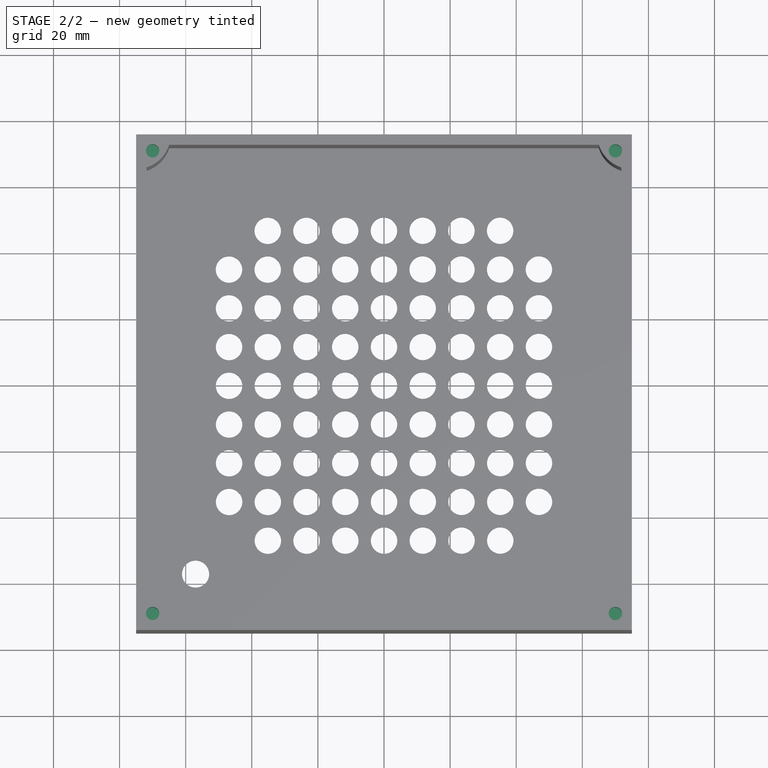
[diagram: stage 2 of 2 — top view after this stage's code; geometry added in this stage tinted green]
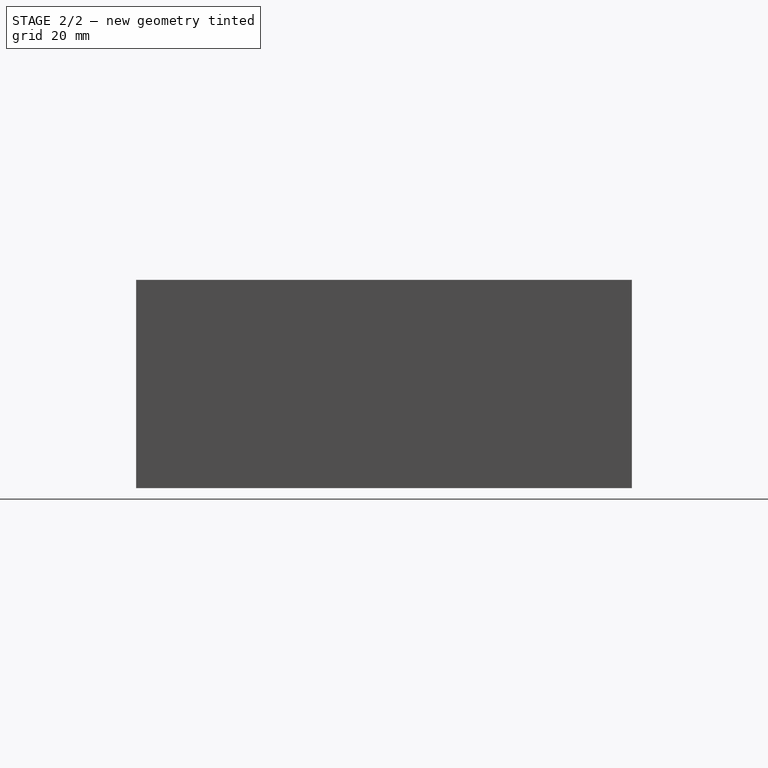
[diagram: stage 2 of 2 — right view after this stage's code; geometry added in this stage tinted green]
FEATURE [PartDesign::Plane] DatumPlane001
  AttachmentOffset = pos=(0,0,63) rot=(0,0,1;0rad)
  Length = 60
  MapMode = 5
  Placement = pos=(0,0,63) rot=(0,0,1;0rad)
  ResizeMode = 0
  Support = -> [XY_Plane]
  Width = 60
FEATURE [Sketcher::SketchObject] Sketch002
  FullyConstrained = true
  MapMode = 5
  Placement = pos=(0,0,63) rot=(0,0,1;0rad)
  Support = -> [DatumPlane001]
  sketch-geometry (7):
    g0: Circle CenterX=-70 CenterY=70 CenterZ=0 NormalX=0 NormalY=0 NormalZ=1 AngleXU=0 Radius=2
    g1: Circle CenterX=70 CenterY=70 CenterZ=0 NormalX=0 NormalY=0 NormalZ=1 AngleXU=0 Radius=2
    g2: LineSegment StartX=-70 StartY=70 StartZ=0 EndX=70 EndY=70 EndZ=0
    g3: Circle CenterX=-70 CenterY=-70 CenterZ=0 NormalX=0 NormalY=0 NormalZ=1 AngleXU=0 Radius=2
    g4: LineSegment StartX=-70 StartY=70 StartZ=0 EndX=-70 EndY=-70 EndZ=0
    g5: Circle CenterX=70 CenterY=-70 CenterZ=0 NormalX=0 NormalY=0 NormalZ=1 AngleXU=0 Radius=2
    g6: LineSegment StartX=-70 StartY=-70 StartZ=0 EndX=70 EndY=-70 EndZ=0
  constraints (18):
    c: Diameter(g0) = 4
    c: Diameter(g1) = 4
    c: Coincident(g0,g2)
    c: Coincident(g1,g2)
    c: Distance(g2) = 140
    c: Angle(g2) = 0
    c: Diameter(g3) = 4
    c: Coincident(g0,g4)
    c: Coincident(g3,g4)
    c: Equal(g4,g2)
    c: Perpendicular(g4,g2)
    c: Diameter(g5) = 4
    c: Coincident(g3,g6)
    c: Coincident(g5,g6)
    c: Equal(g2,g6)
    c: Parallel(g6,g2)
    c: DistanceX(g0,g-1) = 70
    c: DistanceY(g-1,g0) = 70
FEATURE [PartDesign::Pocket] Pocket
  BaseFeature = -> Pad001
  Direction = (0,0,-1)
  Length = 10
  Length2 = 5
  Profile = -> Sketch002
  ReferenceAxis = -> Sketch002 [N_Axis]
  Type = 0
FEATURE [PartDesign::Body] Body
  Group = -> [Sketch,Pad,DatumPlane,Sketch001,Pad001,Sketch002,DatumPlane001,Pocket]
  Origin = -> Origin
  Tip = -> Pocket
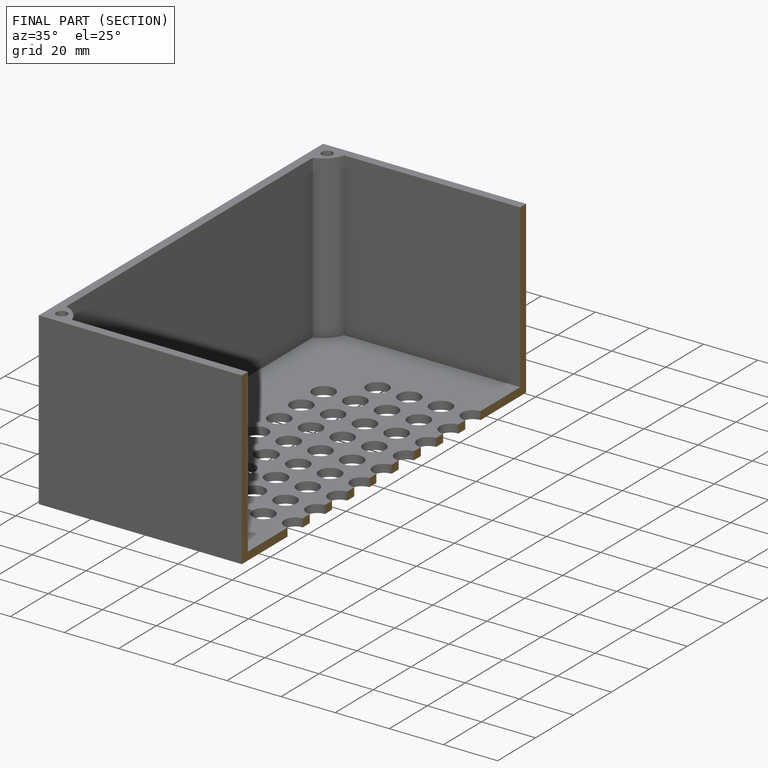
[diagram: finished part — half-section view (interior)]
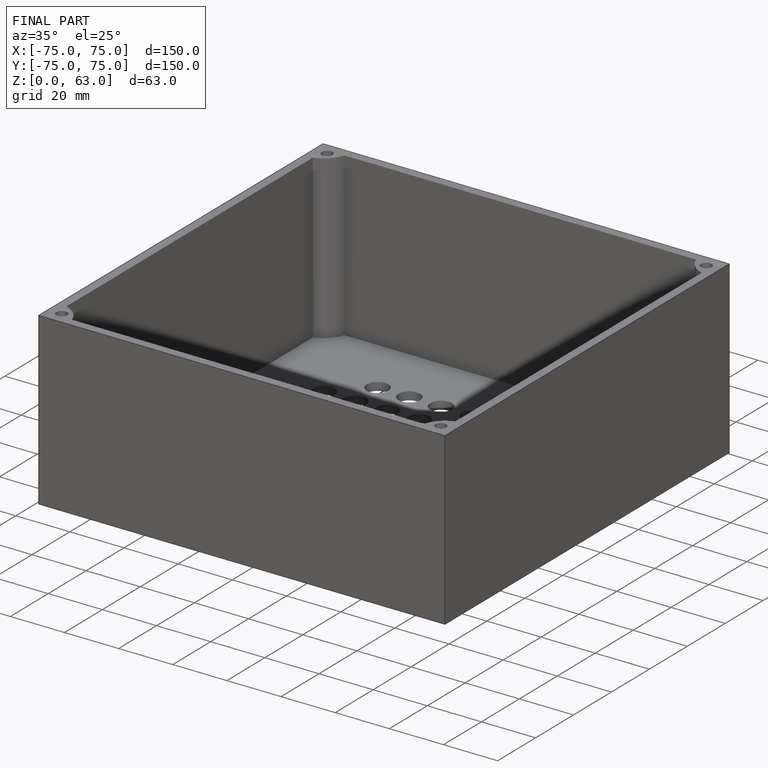
[diagram: finished part — iso view with bounding-box wireframe]
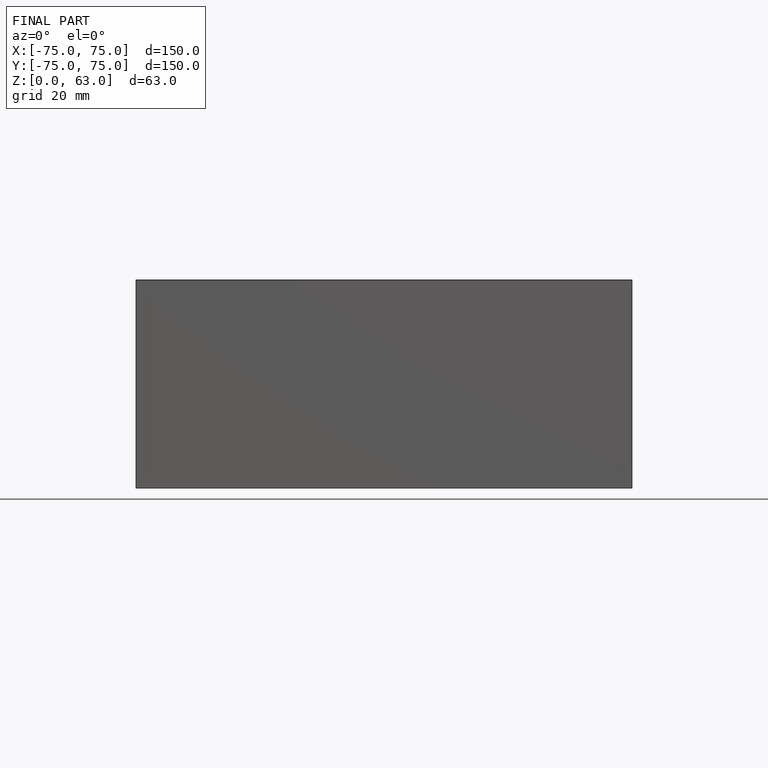
[diagram: finished part — front view with bounding-box wireframe]
